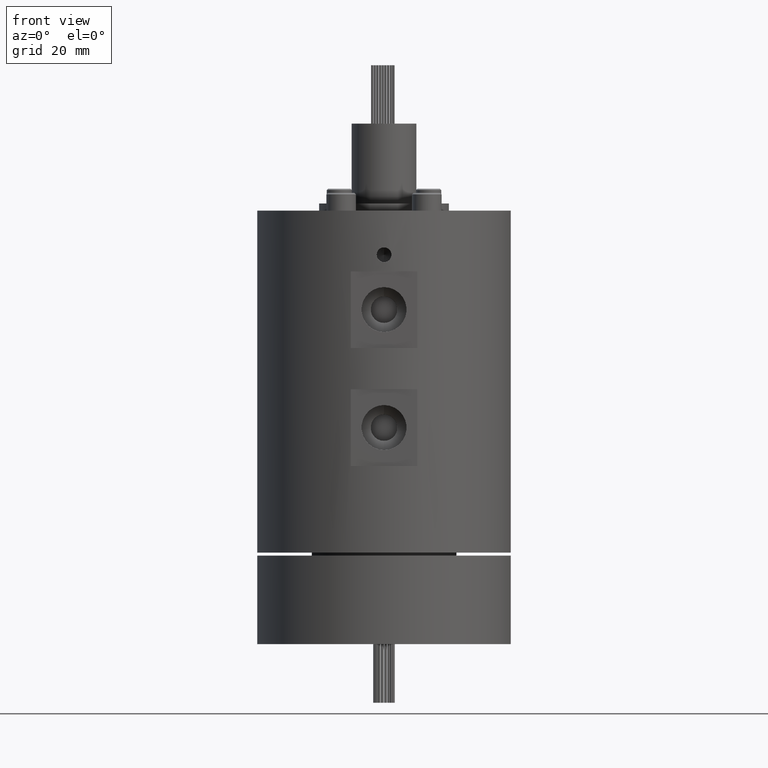
[diagram: clean part render]
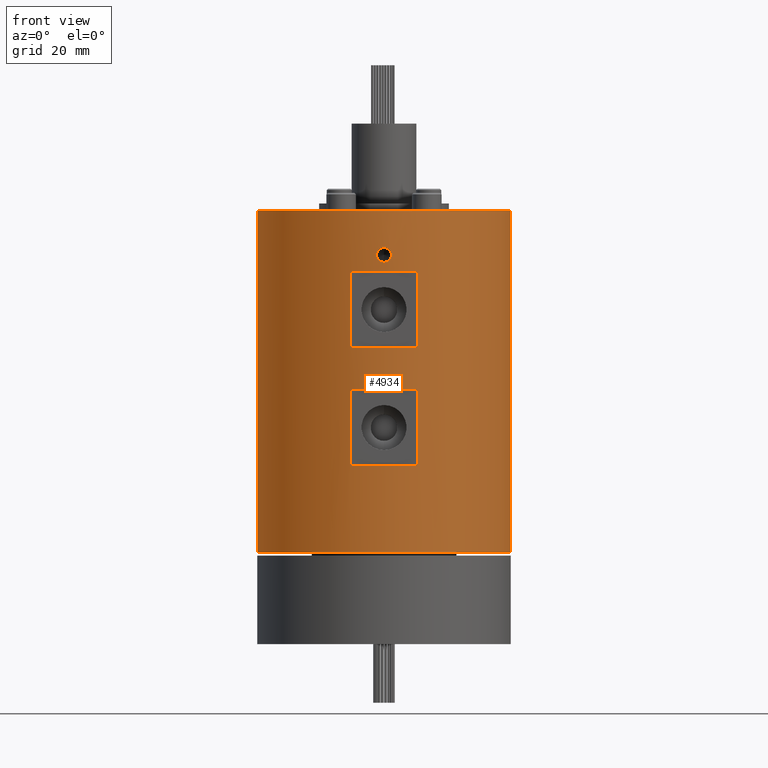
[diagram: same view with one face highlighted and labeled with its STEP entity id]
A machine part, front view. The second image highlights one B-rep face of the part: STEP entity #4934.
In plain terms, the highlighted cylindrical surface (partial cylindrical patch) has radius 43 mm, axis along (-0, -0, -1).
Its self-contained STEP definition (entity closure, byte-faithful):
#25 = CIRCLE ( 'NONE', #930, 43.00000000000000000 ) ;
#102 = B_SPLINE_CURVE_WITH_KNOTS ( 'NONE', 3,
 ( #5806, #8571, #7196, #3081, #7907, #3769, #8608, #4467, #280, #5164, #979, #5842, #1689, #6529, #2410, #7230, #3118, #7939, #3807, #8634, #4501, #309, #5199, #1011, #5868, #1732, #6560, #2448, #7265, #3150, #7971, #3835, #8667, #4531 ),
 .UNSPECIFIED., .F., .F.,
 ( 4, 2, 2, 2, 2, 2, 2, 2, 2, 2, 2, 2, 2, 2, 2, 2, 4 ),
 ( 3.198893477104023000E-018, 0.0004886117746377349400, 0.0009772235492754666300, 0.001465835323913198300, 0.001954447098550929800, 0.002443058873188661300, 0.002931670647826393200, 0.003420282422464125100, 0.003908894197101857000, 0.004397505971739588400, 0.004886117746377319900, 0.005374729521015052200, 0.005863341295652783700, 0.006351953070290515200, 0.006840564844928247500, 0.007329176619565979000, 0.007817788394203710500 ),
 .UNSPECIFIED. ) ;
#118 = EDGE_CURVE ( 'NONE', #1205, #4707, #2744, .T. ) ;
#218 = CARTESIAN_POINT ( 'NONE',  ( 11.25833024919767700, -41.50000000000000000, 100.3999999999999900 ) ) ;
#280 = CARTESIAN_POINT ( 'NONE',  ( -1.652805275276455000, -42.96837846666140600, 130.1172291373685000 ) ) ;
#309 = CARTESIAN_POINT ( 'NONE',  ( -2.247460916743810900, -42.94127213690868700, 133.1071371714233200 ) ) ;
#314 = CARTESIAN_POINT ( 'NONE',  ( -11.25833024919768000, -41.50000000000000000, 60.40000000000000600 ) ) ;
#335 = DIRECTION ( 'NONE',  ( -1.000000000000000000, 0.0000000000000000000, 1.613696256722611200E-016 ) ) ;
#358 = CARTESIAN_POINT ( 'NONE',  ( 3.061617095579214800E-016, -43.00000000000000000, 134.5000000000000000 ) ) ;
#444 = VERTEX_POINT ( 'NONE', #2770 ) ;
#459 = EDGE_CURVE ( 'NONE', #444, #5865, #6740, .T. ) ;
#504 = CARTESIAN_POINT ( 'NONE',  ( 0.0000000000000000000, 0.0000000000000000000, 147.0000000000000300 ) ) ;
#539 = CARTESIAN_POINT ( 'NONE',  ( 0.6476359326652898500, -42.99542469820768500, 134.4202404543133300 ) ) ;
#547 = CIRCLE ( 'NONE', #7095, 43.00000000000000000 ) ;
#569 = CARTESIAN_POINT ( 'NONE',  ( 2.484012561081361300, -42.92820384864816000, 131.6741115919652400 ) ) ;
#604 = CARTESIAN_POINT ( 'NONE',  ( 3.291779002773689600E-015, -43.00000000000000000, 129.5000000000000000 ) ) ;
#655 = AXIS2_PLACEMENT_3D ( 'NONE', #3592, #5623, #7721 ) ;
#664 = LINE ( 'NONE', #2841, #7846 ) ;
#666 = EDGE_LOOP ( 'NONE', ( #6280, #3063 ) ) ;
#673 = VECTOR ( 'NONE', #5721, 1000.000000000000000 ) ;
#784 = EDGE_CURVE ( 'NONE', #8052, #7381, #6191, .T. ) ;
#841 = ORIENTED_EDGE ( 'NONE', *, *, #4214, .F. ) ;
#930 = AXIS2_PLACEMENT_3D ( 'NONE', #6679, #2568, #7384 ) ;
#979 = CARTESIAN_POINT ( 'NONE',  ( -1.986850979405305500, -42.95417083858708200, 130.4737468185184100 ) ) ;
#1006 = CARTESIAN_POINT ( 'NONE',  ( 16.45538759169875600, -39.72681989798536500, 147.0000000000000300 ) ) ;
#1011 = CARTESIAN_POINT ( 'NONE',  ( -1.988153756405392200, -42.95410870516774800, 133.5243951417398900 ) ) ;
#1205 = VERTEX_POINT ( 'NONE', #5377 ) ;
#1212 = CIRCLE ( 'NONE', #4154, 43.00000000000000000 ) ;
#1216 = DIRECTION ( 'NONE',  ( 1.000000000000000000, 0.0000000000000000000, 0.0000000000000000000 ) ) ;
#1248 = CARTESIAN_POINT ( 'NONE',  ( 1.256905196145840400, -42.98267970743744800, 134.1854554433250800 ) ) ;
#1277 = CARTESIAN_POINT ( 'NONE',  ( -16.45538759169875600, -39.72681989798536500, 147.0000000000000300 ) ) ;
#1282 = CARTESIAN_POINT ( 'NONE',  ( 2.372886779994597200, -42.93452397561972600, 131.1960673372302000 ) ) ;
#1415 = DIRECTION ( 'NONE',  ( -0.0000000000000000000, -0.0000000000000000000, -1.000000000000000000 ) ) ;
#1458 = DIRECTION ( 'NONE',  ( -1.571141016286954700E-016, -0.0000000000000000000, -1.000000000000000000 ) ) ;
#1689 = CARTESIAN_POINT ( 'NONE',  ( -2.247237156229692400, -42.94128342074086600, 130.8925528297166100 ) ) ;
#1716 = EDGE_LOOP ( 'NONE', ( #7505, #2648, #7342, #5940 ) ) ;
#1732 = CARTESIAN_POINT ( 'NONE',  ( -1.651471198597907800, -42.96843352037064500, 133.8841128178606800 ) ) ;
#1789 = CARTESIAN_POINT ( 'NONE',  ( 3.291779002773689600E-015, -43.00000000000000000, 129.5000000000000000 ) ) ;
#1806 = CARTESIAN_POINT ( 'NONE',  ( 0.0000000000000000000, 0.0000000000000000000, 86.40000000000000600 ) ) ;
#1807 = VERTEX_POINT ( 'NONE', #358 ) ;
#1857 = AXIS2_PLACEMENT_3D ( 'NONE', #5608, #1458, #6295 ) ;
#1911 = CARTESIAN_POINT ( 'NONE',  ( -11.25833024919768000, -41.50000000000000000, 86.40000000000000600 ) ) ;
#1975 = CARTESIAN_POINT ( 'NONE',  ( 1.881844677263034800, -42.95895693269472600, 133.6538496729459100 ) ) ;
#2005 = CARTESIAN_POINT ( 'NONE',  ( 2.170813143646370700, -42.94526499330999800, 130.7493138888746700 ) ) ;
#2030 = DIRECTION ( 'NONE',  ( 0.0000000000000000000, 0.0000000000000000000, 1.000000000000000000 ) ) ;
#2181 = EDGE_CURVE ( 'NONE', #2255, #4472, #3442, .T. ) ;
#2255 = VERTEX_POINT ( 'NONE', #1277 ) ;
#2410 = CARTESIAN_POINT ( 'NONE',  ( -2.419891196924804300, -42.93186648545097500, 131.3510008029551800 ) ) ;
#2428 = DIRECTION ( 'NONE',  ( -0.0000000000000000000, -0.0000000000000000000, -1.000000000000000000 ) ) ;
#2429 = FACE_BOUND ( 'NONE', #666, .T. ) ;
#2448 = CARTESIAN_POINT ( 'NONE',  ( -1.254265507165743100, -42.98191671814945600, 134.1687186186132400 ) ) ;
#2479 = AXIS2_PLACEMENT_3D ( 'NONE', #3394, #8216, #4081 ) ;
#2527 = DIRECTION ( 'NONE',  ( 1.000000000000000000, 0.0000000000000000000, 0.0000000000000000000 ) ) ;
#2568 = DIRECTION ( 'NONE',  ( 0.0000000000000000000, 0.0000000000000000000, 1.000000000000000000 ) ) ;
#2569 = LINE ( 'NONE', #2961, #673 ) ;
#2648 = ORIENTED_EDGE ( 'NONE', *, *, #118, .T. ) ;
#2649 = CARTESIAN_POINT ( 'NONE',  ( 3.061617095579214800E-016, -43.00000000000000000, 134.5000000000000000 ) ) ;
#2684 = CARTESIAN_POINT ( 'NONE',  ( 2.169136344908526600, -42.94535038786159500, 133.2536203613635500 ) ) ;
#2720 = CARTESIAN_POINT ( 'NONE',  ( 1.884274739164082800, -42.95885026759040700, 130.3489044786269300 ) ) ;
#2744 = CIRCLE ( 'NONE', #2479, 43.00000000000000000 ) ;
#2770 = CARTESIAN_POINT ( 'NONE',  ( -43.00000000000000000, 0.0000000000000000000, 147.0000000000000300 ) ) ;
#2841 = CARTESIAN_POINT ( 'NONE',  ( 43.00000000000000000, 5.265981236333616900E-015, 147.0000000000000300 ) ) ;
#2869 = FACE_OUTER_BOUND ( 'NONE', #5528, .T. ) ;
#2883 = DIRECTION ( 'NONE',  ( 0.0000000000000000000, 0.0000000000000000000, 1.000000000000000000 ) ) ;
#2939 = DIRECTION ( 'NONE',  ( 0.0000000000000000000, 0.0000000000000000000, 1.000000000000000000 ) ) ;
#2961 = CARTESIAN_POINT ( 'NONE',  ( -11.25833024919767700, -41.50000000000000000, 147.0000000000000300 ) ) ;
#2992 = CARTESIAN_POINT ( 'NONE',  ( 43.00000000000000000, 5.265981236333616900E-015, 31.00000000000000000 ) ) ;
#3009 = ORIENTED_EDGE ( 'NONE', *, *, #3662, .T. ) ;
#3050 = CARTESIAN_POINT ( 'NONE',  ( 0.0000000000000000000, 0.0000000000000000000, 31.00000000000000000 ) ) ;
#3063 = ORIENTED_EDGE ( 'NONE', *, *, #8144, .T. ) ;
#3081 = CARTESIAN_POINT ( 'NONE',  ( -0.6472608337800543900, -42.99542523949357800, 129.5797526091868400 ) ) ;
#3118 = CARTESIAN_POINT ( 'NONE',  ( -2.499941579420808900, -42.92726746606275200, 131.8360097882466600 ) ) ;
#3150 = CARTESIAN_POINT ( 'NONE',  ( -0.8051856395071135300, -42.99272766432987700, 134.3724579779595300 ) ) ;
#3386 = CARTESIAN_POINT ( 'NONE',  ( 2.371556157866348000, -42.93459764571287000, 132.8077838822144700 ) ) ;
#3394 = CARTESIAN_POINT ( 'NONE',  ( 0.0000000000000000000, 0.0000000000000000000, 126.3999999999999900 ) ) ;
#3418 = CARTESIAN_POINT ( 'NONE',  ( 1.528039069810080300, -42.97305800170759900, 130.0145415394627800 ) ) ;
#3442 = CIRCLE ( 'NONE', #5551, 43.00000000000000000 ) ;
#3513 = AXIS2_PLACEMENT_3D ( 'NONE', #7006, #2883, #7708 ) ;
#3529 = LINE ( 'NONE', #7249, #8828 ) ;
#3592 = CARTESIAN_POINT ( 'NONE',  ( 0.0000000000000000000, 0.0000000000000000000, 147.0000000000000300 ) ) ;
#3628 = VERTEX_POINT ( 'NONE', #2992 ) ;
#3662 = EDGE_CURVE ( 'NONE', #5865, #3628, #8728, .T. ) ;
#3740 = DIRECTION ( 'NONE',  ( 1.000000000000000000, 0.0000000000000000000, 0.0000000000000000000 ) ) ;
#3769 = CARTESIAN_POINT ( 'NONE',  ( -1.108827424345631100, -42.98596782585790500, 129.7533675082821400 ) ) ;
#3807 = CARTESIAN_POINT ( 'NONE',  ( -2.483793604599711100, -42.92821673346171700, 132.3278672466283900 ) ) ;
#3814 = VERTEX_POINT ( 'NONE', #1789 ) ;
#3835 = CARTESIAN_POINT ( 'NONE',  ( -0.3289126614702732600, -42.99904051835176200, 134.4836472589627500 ) ) ;
#3883 = EDGE_CURVE ( 'NONE', #444, #2255, #25, .T. ) ;
#4024 = CARTESIAN_POINT ( 'NONE',  ( -11.25833024919768000, -41.50000000000000000, 100.4000000000000100 ) ) ;
#4061 = FACE_BOUND ( 'NONE', #1716, .T. ) ;
#4075 = CARTESIAN_POINT ( 'NONE',  ( 2.483568577850907100, -42.92822971312386200, 132.3292900707889100 ) ) ;
#4081 = DIRECTION ( 'NONE',  ( 1.000000000000000000, 0.0000000000000000000, 0.0000000000000000000 ) ) ;
#4104 = CARTESIAN_POINT ( 'NONE',  ( 1.109582234996679300, -42.98594469510793200, 129.7538183058636000 ) ) ;
#4154 = AXIS2_PLACEMENT_3D ( 'NONE', #1806, #6647, #2527 ) ;
#4214 = EDGE_CURVE ( 'NONE', #5985, #3628, #664, .T. ) ;
#4236 = CARTESIAN_POINT ( 'NONE',  ( 11.25833024919768000, -41.50000000000000000, 86.39999999999999100 ) ) ;
#4457 = EDGE_CURVE ( 'NONE', #8052, #5381, #547, .T. ) ;
#4467 = CARTESIAN_POINT ( 'NONE',  ( -1.524169856462165500, -42.97319382636410300, 130.0116337874678400 ) ) ;
#4472 = VERTEX_POINT ( 'NONE', #1006 ) ;
#4501 = CARTESIAN_POINT ( 'NONE',  ( -2.372711963956428700, -42.93453355102906200, 132.8044073748644100 ) ) ;
#4524 = DIRECTION ( 'NONE',  ( -1.571141016286954700E-016, -0.0000000000000000000, -1.000000000000000000 ) ) ;
#4531 = CARTESIAN_POINT ( 'NONE',  ( 3.061617095579214800E-016, -43.00000000000000000, 134.5000000000000000 ) ) ;
#4707 = VERTEX_POINT ( 'NONE', #8153 ) ;
#4713 = VERTEX_POINT ( 'NONE', #4024 ) ;
#4737 = CARTESIAN_POINT ( 'NONE',  ( 0.3253071832178718900, -42.99907153087231400, 134.4841842513229400 ) ) ;
#4772 = CARTESIAN_POINT ( 'NONE',  ( 2.500134119694913600, -42.92725625289616400, 131.8371101185669800 ) ) ;
#4805 = CARTESIAN_POINT ( 'NONE',  ( 0.3303610161901955900, -43.00000000000000000, 129.5000000000000000 ) ) ;
#4856 = DIRECTION ( 'NONE',  ( -0.0000000000000000000, -0.0000000000000000000, -1.000000000000000000 ) ) ;
#4921 = VECTOR ( 'NONE', #4856, 1000.000000000000000 ) ;
#4934 = ADVANCED_FACE ( 'NONE', ( #2869, #2429, #7726, #4061 ), #5651, .T. ) ;
#5010 = ORIENTED_EDGE ( 'NONE', *, *, #2181, .F. ) ;
#5164 = CARTESIAN_POINT ( 'NONE',  ( -1.883376939462550400, -42.95888970441546900, 130.3478853844068500 ) ) ;
#5199 = CARTESIAN_POINT ( 'NONE',  ( -2.169160154047288900, -42.94534845871633900, 133.2535071333512900 ) ) ;
#5377 = CARTESIAN_POINT ( 'NONE',  ( -11.25833024919768000, -41.50000000000000000, 126.3999999999999900 ) ) ;
#5381 = VERTEX_POINT ( 'NONE', #314 ) ;
#5389 = DIRECTION ( 'NONE',  ( 0.0000000000000000000, 0.0000000000000000000, 1.000000000000000000 ) ) ;
#5426 = CARTESIAN_POINT ( 'NONE',  ( 0.8056052354994116500, -42.99271614565191900, 134.3722366547733900 ) ) ;
#5457 = CARTESIAN_POINT ( 'NONE',  ( 2.420741436732330300, -42.93181821180169100, 131.3546066667617000 ) ) ;
#5510 = LINE ( 'NONE', #6859, #7341 ) ;
#5528 = EDGE_LOOP ( 'NONE', ( #841, #8679, #5010, #7266, #7921, #3009 ) ) ;
#5533 = CARTESIAN_POINT ( 'NONE',  ( -43.00000000000000000, 0.0000000000000000000, 147.0000000000000300 ) ) ;
#5551 = AXIS2_PLACEMENT_3D ( 'NONE', #504, #5389, #1216 ) ;
#5608 = CARTESIAN_POINT ( 'NONE',  ( 0.0000000000000000000, 0.0000000000000000000, 100.3999999999999900 ) ) ;
#5623 = DIRECTION ( 'NONE',  ( -0.0000000000000000000, -0.0000000000000000000, -1.000000000000000000 ) ) ;
#5651 = CYLINDRICAL_SURFACE ( 'NONE', #655, 43.00000000000000000 ) ;
#5721 = DIRECTION ( 'NONE',  ( -0.0000000000000000000, -0.0000000000000000000, -1.000000000000000000 ) ) ;
#5806 = CARTESIAN_POINT ( 'NONE',  ( 3.291779002773689600E-015, -43.00000000000000000, 129.5000000000000000 ) ) ;
#5842 = CARTESIAN_POINT ( 'NONE',  ( -2.169604314709129500, -42.94532787582932800, 130.7470663601204400 ) ) ;
#5852 = ORIENTED_EDGE ( 'NONE', *, *, #784, .F. ) ;
#5865 = VERTEX_POINT ( 'NONE', #5899 ) ;
#5868 = CARTESIAN_POINT ( 'NONE',  ( -1.884822929902396900, -42.95883004502363200, 133.6506607020036800 ) ) ;
#5887 = EDGE_CURVE ( 'NONE', #7893, #4713, #6356, .T. ) ;
#5899 = CARTESIAN_POINT ( 'NONE',  ( -43.00000000000000000, 0.0000000000000000000, 31.00000000000000000 ) ) ;
#5940 = ORIENTED_EDGE ( 'NONE', *, *, #5887, .T. ) ;
#5985 = VERTEX_POINT ( 'NONE', #7206 ) ;
#6063 = EDGE_LOOP ( 'NONE', ( #9028, #8271, #5852, #6281 ) ) ;
#6109 = CARTESIAN_POINT ( 'NONE',  ( 1.535898319817792700, -42.97318113532013900, 133.9993120995399400 ) ) ;
#6135 = CARTESIAN_POINT ( 'NONE',  ( 2.247518376116664400, -42.94126921543838900, 130.8929496190510500 ) ) ;
#6191 = LINE ( 'NONE', #7764, #7824 ) ;
#6280 = ORIENTED_EDGE ( 'NONE', *, *, #7591, .T. ) ;
#6281 = ORIENTED_EDGE ( 'NONE', *, *, #4457, .T. ) ;
#6295 = DIRECTION ( 'NONE',  ( -1.000000000000000000, 0.0000000000000000000, 0.0000000000000000000 ) ) ;
#6356 = CIRCLE ( 'NONE', #1857, 43.00000000000000000 ) ;
#6529 = CARTESIAN_POINT ( 'NONE',  ( -2.371903357042564100, -42.93457780299676300, 131.1934093131220300 ) ) ;
#6558 = B_SPLINE_CURVE_WITH_KNOTS ( 'NONE', 3,
 ( #2649, #6781, #4737, #539, #5426, #1248, #6109, #1975, #6810, #2684, #7506, #3386, #8208, #4075, #8912, #4772, #569, #5457, #1282, #6135, #2005, #6838, #2720, #7537, #3418, #8242, #4104, #8945, #4805, #604 ),
 .UNSPECIFIED., .F., .F.,
 ( 4, 2, 2, 2, 2, 2, 2, 2, 2, 2, 2, 2, 2, 2, 4 ),
 ( 0.007817788394203710500, 0.008306288437138910400, 0.008794788480074112000, 0.009771788565944513500, 0.01026028860887971300, 0.01074878865181491300, 0.01123728869475011300, 0.01172578873768531300, 0.01221428878062051300, 0.01270278882355571300, 0.01319128886649091300, 0.01367978890942611300, 0.01416828895236131400, 0.01465678899529651600, 0.01563378908116691600 ),
 .UNSPECIFIED. ) ;
#6560 = CARTESIAN_POINT ( 'NONE',  ( -1.525024196105057200, -42.97316194940390900, 133.9876678823383700 ) ) ;
#6647 = DIRECTION ( 'NONE',  ( 1.571141016286954700E-016, 0.0000000000000000000, 1.000000000000000000 ) ) ;
#6679 = CARTESIAN_POINT ( 'NONE',  ( 0.0000000000000000000, 0.0000000000000000000, 147.0000000000000300 ) ) ;
#6687 = CIRCLE ( 'NONE', #3513, 43.00000000000000000 ) ;
#6740 = LINE ( 'NONE', #5533, #4921 ) ;
#6781 = CARTESIAN_POINT ( 'NONE',  ( 0.1631430373106029500, -43.00000000000000000, 134.5000000000000000 ) ) ;
#6810 = CARTESIAN_POINT ( 'NONE',  ( 1.987443257244855500, -42.95414231151913500, 133.5253805402129200 ) ) ;
#6838 = CARTESIAN_POINT ( 'NONE',  ( 1.989751574413320700, -42.95403477814818400, 130.4776550570552400 ) ) ;
#6859 = CARTESIAN_POINT ( 'NONE',  ( 11.25833024919767700, -41.50000000000000000, 147.0000000000000300 ) ) ;
#7006 = CARTESIAN_POINT ( 'NONE',  ( 0.0000000000000000000, 0.0000000000000000000, 147.0000000000000300 ) ) ;
#7095 = AXIS2_PLACEMENT_3D ( 'NONE', #8664, #4524, #335 ) ;
#7196 = CARTESIAN_POINT ( 'NONE',  ( -0.3276684068845620000, -42.99904849559997900, 129.5162171119816000 ) ) ;
#7206 = CARTESIAN_POINT ( 'NONE',  ( 43.00000000000000000, 5.265981236333616900E-015, 147.0000000000000300 ) ) ;
#7230 = CARTESIAN_POINT ( 'NONE',  ( -2.484077474492547100, -42.92820043316817200, 131.6737601136621300 ) ) ;
#7249 = CARTESIAN_POINT ( 'NONE',  ( -11.25833024919767700, -41.50000000000000000, 147.0000000000000300 ) ) ;
#7265 = CARTESIAN_POINT ( 'NONE',  ( -1.108134947565362600, -42.98598600557266300, 134.2469796859866400 ) ) ;
#7266 = ORIENTED_EDGE ( 'NONE', *, *, #3883, .F. ) ;
#7341 = VECTOR ( 'NONE', #2030, 1000.000000000000000 ) ;
#7342 = ORIENTED_EDGE ( 'NONE', *, *, #8715, .F. ) ;
#7356 = CARTESIAN_POINT ( 'NONE',  ( 11.25833024919767700, -41.50000000000000000, 60.39999999999999900 ) ) ;
#7381 = VERTEX_POINT ( 'NONE', #4236 ) ;
#7384 = DIRECTION ( 'NONE',  ( 1.000000000000000000, 0.0000000000000000000, 0.0000000000000000000 ) ) ;
#7505 = ORIENTED_EDGE ( 'NONE', *, *, #8493, .F. ) ;
#7506 = CARTESIAN_POINT ( 'NONE',  ( 2.245982092873765300, -42.94134974645833600, 133.1101161420183700 ) ) ;
#7537 = CARTESIAN_POINT ( 'NONE',  ( 1.653752870839762400, -42.96834193971292800, 130.1180570796277300 ) ) ;
#7591 = EDGE_CURVE ( 'NONE', #3814, #1807, #102, .T. ) ;
#7708 = DIRECTION ( 'NONE',  ( 1.000000000000000000, 0.0000000000000000000, 0.0000000000000000000 ) ) ;
#7714 = VERTEX_POINT ( 'NONE', #1911 ) ;
#7721 = DIRECTION ( 'NONE',  ( -1.000000000000000000, 0.0000000000000000000, 0.0000000000000000000 ) ) ;
#7726 = FACE_BOUND ( 'NONE', #6063, .T. ) ;
#7764 = CARTESIAN_POINT ( 'NONE',  ( 11.25833024919767700, -41.50000000000000000, 147.0000000000000300 ) ) ;
#7815 = EDGE_CURVE ( 'NONE', #7714, #5381, #2569, .T. ) ;
#7824 = VECTOR ( 'NONE', #2939, 1000.000000000000000 ) ;
#7846 = VECTOR ( 'NONE', #1415, 1000.000000000000000 ) ;
#7872 = DIRECTION ( 'NONE',  ( 0.0000000000000000000, 0.0000000000000000000, 1.000000000000000000 ) ) ;
#7893 = VERTEX_POINT ( 'NONE', #218 ) ;
#7907 = CARTESIAN_POINT ( 'NONE',  ( -0.8060614070659497500, -42.99271093093235400, 129.6278446893464300 ) ) ;
#7921 = ORIENTED_EDGE ( 'NONE', *, *, #459, .T. ) ;
#7939 = CARTESIAN_POINT ( 'NONE',  ( -2.500058101569335300, -42.92726068004088100, 132.1622041270912900 ) ) ;
#7971 = CARTESIAN_POINT ( 'NONE',  ( -0.6493231263201720800, -42.99539566645894700, 134.4197245139590700 ) ) ;
#8052 = VERTEX_POINT ( 'NONE', #7356 ) ;
#8144 = EDGE_CURVE ( 'NONE', #1807, #3814, #6558, .T. ) ;
#8153 = CARTESIAN_POINT ( 'NONE',  ( 11.25833024919768000, -41.50000000000000000, 126.3999999999999900 ) ) ;
#8208 = CARTESIAN_POINT ( 'NONE',  ( 2.419823133739951200, -42.93187015708769400, 132.6488457698294200 ) ) ;
#8216 = DIRECTION ( 'NONE',  ( 1.571141016286954700E-016, 0.0000000000000000000, 1.000000000000000000 ) ) ;
#8236 = AXIS2_PLACEMENT_3D ( 'NONE', #3050, #7872, #3740 ) ;
#8242 = CARTESIAN_POINT ( 'NONE',  ( 1.255290715340217700, -42.98188993793747400, 129.8317763221093600 ) ) ;
#8271 = ORIENTED_EDGE ( 'NONE', *, *, #8551, .T. ) ;
#8493 = EDGE_CURVE ( 'NONE', #1205, #4713, #3529, .T. ) ;
#8551 = EDGE_CURVE ( 'NONE', #7714, #7381, #1212, .T. ) ;
#8571 = CARTESIAN_POINT ( 'NONE',  ( -0.1652182888479587200, -43.00000000000000000, 129.5000000000000300 ) ) ;
#8608 = CARTESIAN_POINT ( 'NONE',  ( -1.252419051748193500, -42.98197212679315300, 129.8301750150517900 ) ) ;
#8634 = CARTESIAN_POINT ( 'NONE',  ( -2.419941883231549800, -42.93186350331294000, 132.6485436634829100 ) ) ;
#8664 = CARTESIAN_POINT ( 'NONE',  ( 0.0000000000000000000, 0.0000000000000000000, 60.40000000000000600 ) ) ;
#8667 = CARTESIAN_POINT ( 'NONE',  ( -0.1631803520449182900, -43.00000000000000000, 134.5000000000000000 ) ) ;
#8679 = ORIENTED_EDGE ( 'NONE', *, *, #8849, .F. ) ;
#8715 = EDGE_CURVE ( 'NONE', #7893, #4707, #5510, .T. ) ;
#8728 = CIRCLE ( 'NONE', #8236, 43.00000000000000000 ) ;
#8828 = VECTOR ( 'NONE', #2428, 1000.000000000000000 ) ;
#8849 = EDGE_CURVE ( 'NONE', #4472, #5985, #6687, .T. ) ;
#8912 = CARTESIAN_POINT ( 'NONE',  ( 2.499864206519574900, -42.92727197210693600, 132.1669810734729500 ) ) ;
#8945 = CARTESIAN_POINT ( 'NONE',  ( 0.6585552730932674500, -42.99600866616191300, 129.5664173099201300 ) ) ;
#9028 = ORIENTED_EDGE ( 'NONE', *, *, #7815, .F. ) ;